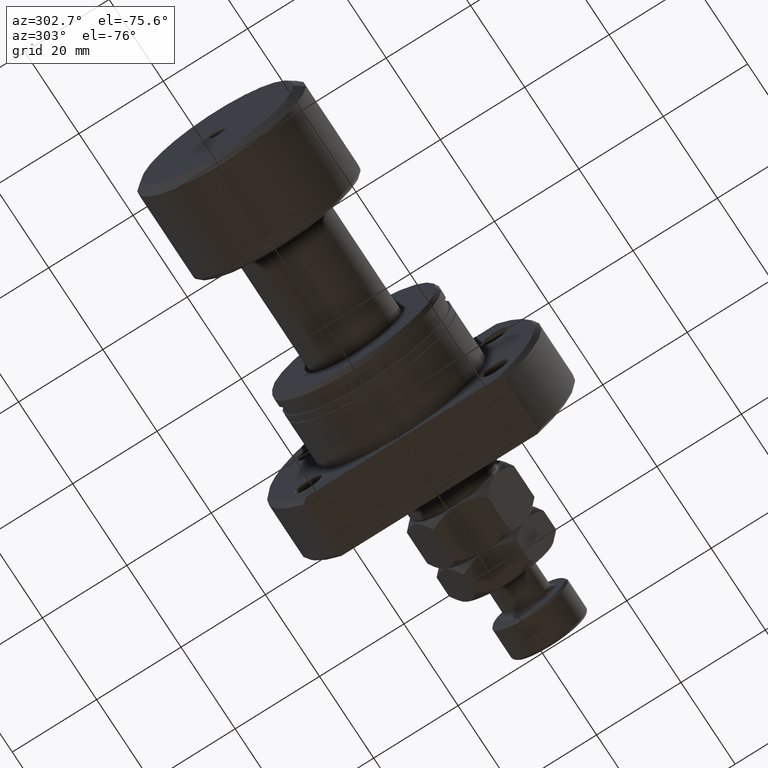
[diagram: clean part render]
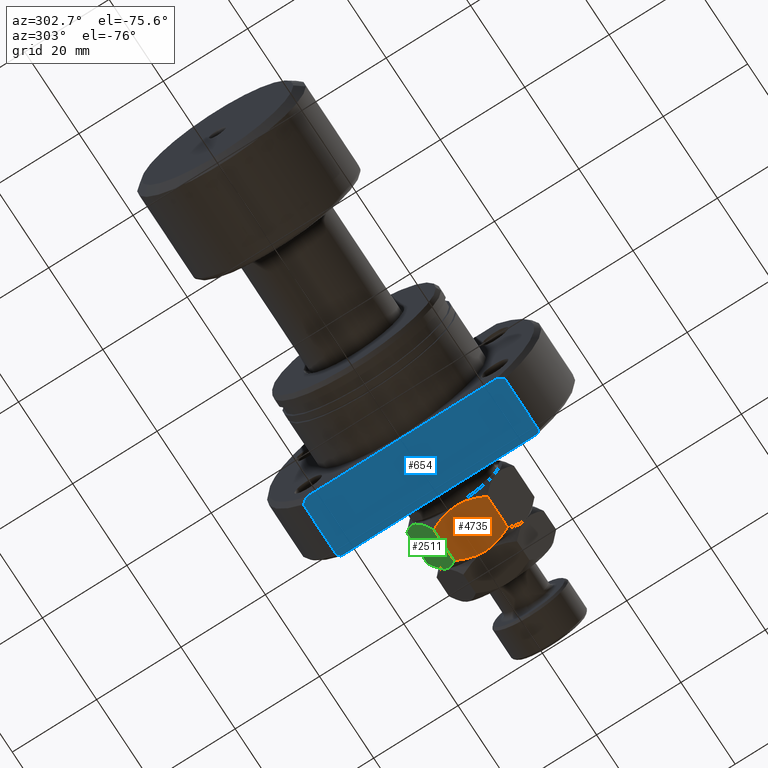
[diagram: same view with three faces highlighted in distinct colors, each labeled with its STEP entity id]
A machine part, auxiliary view with three faces highlighted in distinct colors.
Their STEP definitions:

[orange] entity #4735 — the highlighted planar face has unit normal (-0, 0, 1).
#149 = VERTEX_POINT ( 'NONE', #4440 ) ;
#182 = CARTESIAN_POINT ( 'NONE',  ( 10.99999999999999822, 4.323029509133802684, 0.8096537352537666044 ) ) ;
#334 = DIRECTION ( 'NONE',  ( -0.000000000000000000, -0.000000000000000000, -1.000000000000000000 ) ) ;
#400 = CARTESIAN_POINT ( 'NONE',  ( 11.00000000000000000, -0.2746235576716405391, 11.00000000000000355 ) ) ;
#446 = CARTESIAN_POINT ( 'NONE',  ( 11.00000000000000000, 6.350852961085883486, 9.298294077828240134 ) ) ;
#531 = CARTESIAN_POINT ( 'NONE',  ( 11.00000000000000000, 6.350852961085883486, 1.701705922171761198 ) ) ;
#560 = FACE_OUTER_BOUND ( 'NONE', #1838, .T. ) ;
#619 = CARTESIAN_POINT ( 'NONE',  ( 10.99999999999999645, -2.189438957741031366, 0.2028253662507153998 ) ) ;
#650 = B_SPLINE_CURVE_WITH_KNOTS ( 'NONE', 3,
 ( #4370, #2499, #1351, #619, #4350, #1725, #2036, #2896 ),
 .UNSPECIFIED., .F., .F.,
 ( 4, 2, 2, 4 ),
 ( 0.02548310755563731184, 0.02714502201312677179, 0.02880693647061623175, 0.03213076538559515166 ),
 .UNSPECIFIED. ) ;
#738 = CARTESIAN_POINT ( 'NONE',  ( 11.00000000000000000, -6.350852961085885262, 1.701705922171761864 ) ) ;
#773 = CARTESIAN_POINT ( 'NONE',  ( 10.99999999999999822, -2.205563362884370271, 10.79423439979603039 ) ) ;
#803 = EDGE_CURVE ( 'NONE', #2195, #149, #3767, .T. ) ;
#973 = CARTESIAN_POINT ( 'NONE',  ( 11.00000000000000000, 1.102880524211967916, 0.05171427369706949051 ) ) ;
#1019 = CARTESIAN_POINT ( 'NONE',  ( 11.00000000000000000, 2.731989201781026555, 10.67753305448841772 ) ) ;
#1140 = CARTESIAN_POINT ( 'NONE',  ( 11.00000000000000000, 6.350852961085883486, 11.00000000000000000 ) ) ;
#1160 = CARTESIAN_POINT ( 'NONE',  ( 11.00000000000000000, 6.350852961085883486, 9.298294077828240134 ) ) ;
#1243 = CARTESIAN_POINT ( 'NONE',  ( 11.00000000000000000, -6.350852961085885262, 9.298294077828238358 ) ) ;
#1351 = CARTESIAN_POINT ( 'NONE',  ( 11.00000000000000178, -1.099784029505286975, 0.04170177774201815762 ) ) ;
#1391 = CARTESIAN_POINT ( 'NONE',  ( 11.00000000000000178, 1.099784029505284533, 10.95829822225798189 ) ) ;
#1547 = CARTESIAN_POINT ( 'NONE',  ( 11.00000000000000178, -1.381217716854154398, 10.91695300848610017 ) ) ;
#1553 = EDGE_CURVE ( 'NONE', #2372, #4659, #2761, .T. ) ;
#1602 = CARTESIAN_POINT ( 'NONE',  ( 10.99999999999999822, -5.856287164594791150, 9.545576976073807174 ) ) ;
#1725 = CARTESIAN_POINT ( 'NONE',  ( 11.00000000000000178, -4.344649988696088094, 0.7819333922108973045 ) ) ;
#1766 = CARTESIAN_POINT ( 'NONE',  ( 11.00000000000000178, 0.5516605423237666006, 11.00000000000000355 ) ) ;
#1838 = EDGE_LOOP ( 'NONE', ( #3672, #2817, #2929, #3140, #3814, #4605 ) ) ;
#1964 = VERTEX_POINT ( 'NONE', #738 ) ;
#2012 = CARTESIAN_POINT ( 'NONE',  ( 11.00000000000000178, 1.381217716854154398, 0.08304699151390024237 ) ) ;
#2036 = CARTESIAN_POINT ( 'NONE',  ( 11.00000000000000000, -5.363576505757326807, 1.208067694507484413 ) ) ;
#2127 = CARTESIAN_POINT ( 'NONE',  ( 11.00000000000000000, -6.350852961085885262, 11.00000000000000000 ) ) ;
#2195 = VERTEX_POINT ( 'NONE', #531 ) ;
#2331 = CARTESIAN_POINT ( 'NONE',  ( 11.00000000000000178, -5.349315167928747172, 9.777295308501312121 ) ) ;
#2372 = VERTEX_POINT ( 'NONE', #2552 ) ;
#2497 = CARTESIAN_POINT ( 'NONE',  ( 10.99999999999999467, 0.000000000000000000, 11.00000000000000000 ) ) ;
#2499 = CARTESIAN_POINT ( 'NONE',  ( 10.99999999999999822, -0.5516605423237674888, 3.811648262644349985E-18 ) ) ;
#2552 = CARTESIAN_POINT ( 'NONE',  ( 10.99999999999999467, 0.000000000000000000, 11.00000000000000000 ) ) ;
#2669 = CARTESIAN_POINT ( 'NONE',  ( 10.99999999999999822, 5.363576505757325918, 9.791932305492514033 ) ) ;
#2726 = CARTESIAN_POINT ( 'NONE',  ( 10.99999999999999467, 0.000000000000000000, 11.00000000000000000 ) ) ;
#2761 = B_SPLINE_CURVE_WITH_KNOTS ( 'NONE', 3,
 ( #2497, #1766, #1391, #2894, #1019, #3796, #2669, #1160 ),
 .UNSPECIFIED., .F., .F.,
 ( 4, 2, 2, 4 ),
 ( 0.02548310755563731531, 0.02714502201312677526, 0.02880693647061623522, 0.03213076538559515860 ),
 .UNSPECIFIED. ) ;
#2763 = EDGE_CURVE ( 'NONE', #4659, #2195, #4515, .T. ) ;
#2779 = CARTESIAN_POINT ( 'NONE',  ( 11.00000000000000000, 5.349315167928744508, 1.222704691498689877 ) ) ;
#2817 = ORIENTED_EDGE ( 'NONE', *, *, #2763, .F. ) ;
#2894 = CARTESIAN_POINT ( 'NONE',  ( 10.99999999999999822, 2.189438957741029590, 10.79717463374928421 ) ) ;
#2896 = CARTESIAN_POINT ( 'NONE',  ( 11.00000000000000000, -6.350852961085885262, 1.701705922171761864 ) ) ;
#2929 = ORIENTED_EDGE ( 'NONE', *, *, #1553, .F. ) ;
#3046 = CARTESIAN_POINT ( 'NONE',  ( 11.00000000000000178, -0.5501206218979368678, 10.98970138300551191 ) ) ;
#3087 = EDGE_CURVE ( 'NONE', #4201, #1964, #3715, .T. ) ;
#3113 = DIRECTION ( 'NONE',  ( -0.000000000000000000, -0.000000000000000000, -1.000000000000000000 ) ) ;
#3140 = ORIENTED_EDGE ( 'NONE', *, *, #3956, .F. ) ;
#3253 = CARTESIAN_POINT ( 'NONE',  ( 11.00000000000000000, -6.350852961085885262, 11.00000000000000000 ) ) ;
#3385 = AXIS2_PLACEMENT_3D ( 'NONE', #2127, #3574, #4420 ) ;
#3412 = CARTESIAN_POINT ( 'NONE',  ( 11.00000000000000355, -2.743986917173864892, 10.67427553246086447 ) ) ;
#3449 = VECTOR ( 'NONE', #334, 1000.000000000000000 ) ;
#3482 = CARTESIAN_POINT ( 'NONE',  ( 11.00000000000000000, -3.802713407336412832, 10.37230892346509847 ) ) ;
#3512 = CARTESIAN_POINT ( 'NONE',  ( 11.00000000000000000, 0.000000000000000000, 0.000000000000000000 ) ) ;
#3561 = CARTESIAN_POINT ( 'NONE',  ( 11.00000000000000178, 5.856287164594785821, 1.454423023926191938 ) ) ;
#3574 = DIRECTION ( 'NONE',  ( -1.000000000000000000, 0.000000000000000000, 0.000000000000000000 ) ) ;
#3672 = ORIENTED_EDGE ( 'NONE', *, *, #803, .F. ) ;
#3715 = LINE ( 'NONE', #3253, #3449 ) ;
#3732 = EDGE_CURVE ( 'NONE', #149, #1964, #650, .T. ) ;
#3767 = B_SPLINE_CURVE_WITH_KNOTS ( 'NONE', 3,
 ( #4701, #3561, #2779, #182, #3880, #4279, #4675, #2012, #973, #4629, #3954, #3512 ),
 .UNSPECIFIED., .F., .F.,
 ( 4, 2, 2, 2, 2, 4 ),
 ( 0.01886453216956117396, 0.02051917601608021016, 0.02217381986259924290, 0.02382846370911827910, 0.02465578563237779547, 0.02548310755563731184 ),
 .UNSPECIFIED. ) ;
#3796 = CARTESIAN_POINT ( 'NONE',  ( 11.00000000000000178, 4.344649988696087206, 10.21806660778910114 ) ) ;
#3814 = ORIENTED_EDGE ( 'NONE', *, *, #3087, .T. ) ;
#3880 = CARTESIAN_POINT ( 'NONE',  ( 11.00000000000000000, 3.802713407336413276, 0.6276910765349043020 ) ) ;
#3946 = PLANE ( 'NONE',  #3385 ) ;
#3954 = CARTESIAN_POINT ( 'NONE',  ( 10.99999999999999822, 0.2746235576716393179, 8.470329472542994146E-18 ) ) ;
#3956 = EDGE_CURVE ( 'NONE', #4201, #2372, #4662, .T. ) ;
#3988 = CARTESIAN_POINT ( 'NONE',  ( 11.00000000000000000, -6.350852961085885262, 9.298294077828238358 ) ) ;
#4150 = CARTESIAN_POINT ( 'NONE',  ( 10.99999999999999822, -4.323029509133800907, 10.19034626474623551 ) ) ;
#4201 = VERTEX_POINT ( 'NONE', #3988 ) ;
#4203 = CARTESIAN_POINT ( 'NONE',  ( 11.00000000000000000, -1.102880524211969027, 10.94828572630293273 ) ) ;
#4279 = CARTESIAN_POINT ( 'NONE',  ( 11.00000000000000000, 2.743986917173864448, 0.3257244675391384736 ) ) ;
#4350 = CARTESIAN_POINT ( 'NONE',  ( 11.00000000000000000, -2.731989201781026111, 0.3224669455115847794 ) ) ;
#4370 = CARTESIAN_POINT ( 'NONE',  ( 11.00000000000000000, 0.000000000000000000, 0.000000000000000000 ) ) ;
#4420 = DIRECTION ( 'NONE',  ( 0.000000000000000000, 0.000000000000000000, 1.000000000000000000 ) ) ;
#4440 = CARTESIAN_POINT ( 'NONE',  ( 11.00000000000000000, 0.000000000000000000, 0.000000000000000000 ) ) ;
#4515 = LINE ( 'NONE', #1140, #4707 ) ;
#4605 = ORIENTED_EDGE ( 'NONE', *, *, #3732, .F. ) ;
#4629 = CARTESIAN_POINT ( 'NONE',  ( 10.99999999999999822, 0.5501206218979356466, 0.01029861699449337656 ) ) ;
#4659 = VERTEX_POINT ( 'NONE', #446 ) ;
#4662 = B_SPLINE_CURVE_WITH_KNOTS ( 'NONE', 3,
 ( #1243, #1602, #2331, #4150, #3482, #3412, #773, #1547, #4203, #3046, #400, #2726 ),
 .UNSPECIFIED., .F., .F.,
 ( 4, 2, 2, 2, 2, 4 ),
 ( 0.01886453216956117396, 0.02051917601608021016, 0.02217381986259924637, 0.02382846370911827910, 0.02465578563237779547, 0.02548310755563731531 ),
 .UNSPECIFIED. ) ;
#4675 = CARTESIAN_POINT ( 'NONE',  ( 11.00000000000000000, 2.205563362884370715, 0.2057656002039678633 ) ) ;
#4701 = CARTESIAN_POINT ( 'NONE',  ( 11.00000000000000000, 6.350852961085883486, 1.701705922171761198 ) ) ;
#4707 = VECTOR ( 'NONE', #3113, 1000.000000000000000 ) ;
#4735 = ADVANCED_FACE ( 'NONE', ( #560 ), #3946, .F. ) ;

[blue] entity #654 — the highlighted planar face has unit normal (0, 0, 1).
#62 = LINE ( 'NONE', #3081, #1730 ) ;
#75 = EDGE_CURVE ( 'NONE', #391, #3721, #1014, .T. ) ;
#155 = DIRECTION ( 'NONE',  ( 1.000000000000000000, -2.886466111666351885E-14, -0.000000000000000000 ) ) ;
#213 = CARTESIAN_POINT ( 'NONE',  ( -2.498001805406602216E-13, 23.92174742781216423, -21.99999999999998934 ) ) ;
#391 = VERTEX_POINT ( 'NONE', #3033 ) ;
#396 = B_SPLINE_CURVE_WITH_KNOTS ( 'NONE', 3,
 ( #2010, #4552, #3466, #3418 ),
 .UNSPECIFIED., .F., .F.,
 ( 4, 4 ),
 ( 0.03779752499755586331, 0.03950166028446448763 ),
 .UNSPECIFIED. ) ;
#563 = CARTESIAN_POINT ( 'NONE',  ( -1.637578961322105897E-12, -23.92174742781036301, -22.00000000000000355 ) ) ;
#617 = CARTESIAN_POINT ( 'NONE',  ( 18.49999999999998934, -23.92174742781089947, -22.00000000000000355 ) ) ;
#654 = ADVANCED_FACE ( 'NONE', ( #1993 ), #4583, .F. ) ;
#688 = B_SPLINE_CURVE_WITH_KNOTS ( 'NONE', 3,
 ( #4333, #3934, #3636, #2532 ),
 .UNSPECIFIED., .F., .F.,
 ( 4, 4 ),
 ( 0.03779112510166918876, 0.03863931077161771033 ),
 .UNSPECIFIED. ) ;
#735 = CARTESIAN_POINT ( 'NONE',  ( 31.50000000000000000, -32.00000000000000000, -22.00000000000000355 ) ) ;
#886 = B_SPLINE_CURVE_WITH_KNOTS ( 'NONE', 3,
 ( #4511, #3379, #1516, #3244 ),
 .UNSPECIFIED., .F., .F.,
 ( 4, 4 ),
 ( 0.08934887722955515976, 0.09106053602301780736 ),
 .UNSPECIFIED. ) ;
#896 = B_SPLINE_CURVE_WITH_KNOTS ( 'NONE', 3,
 ( #4036, #4863, #3255, #4461 ),
 .UNSPECIFIED., .F., .F.,
 ( 4, 4 ),
 ( 0.09020251661949948985, 0.09105413011805403578 ),
 .UNSPECIFIED. ) ;
#903 = VERTEX_POINT ( 'NONE', #3127 ) ;
#908 = ORIENTED_EDGE ( 'NONE', *, *, #4311, .F. ) ;
#1004 = ORIENTED_EDGE ( 'NONE', *, *, #3594, .F. ) ;
#1014 = LINE ( 'NONE', #735, #2339 ) ;
#1174 = ORIENTED_EDGE ( 'NONE', *, *, #4419, .F. ) ;
#1265 = DIRECTION ( 'NONE',  ( 1.000000000000000000, -2.886466111666351885E-14, -0.000000000000000000 ) ) ;
#1440 = VERTEX_POINT ( 'NONE', #617 ) ;
#1451 = EDGE_LOOP ( 'NONE', ( #2200, #908, #4053, #2044, #4523, #1174, #2704, #1004 ) ) ;
#1497 = VERTEX_POINT ( 'NONE', #1877 ) ;
#1516 = CARTESIAN_POINT ( 'NONE',  ( 18.16344437228347886, -23.46450416271138906, -22.00000000000000355 ) ) ;
#1557 = DIRECTION ( 'NONE',  ( 1.000000000000000000, 0.000000000000000000, -0.000000000000000000 ) ) ;
#1585 = CARTESIAN_POINT ( 'NONE',  ( -2.498001805406602216E-13, 23.92174742781217489, -22.00000000000000355 ) ) ;
#1730 = VECTOR ( 'NONE', #4231, 1000.000000000000000 ) ;
#1786 = EDGE_CURVE ( 'NONE', #1440, #3206, #3949, .T. ) ;
#1877 = CARTESIAN_POINT ( 'NONE',  ( 17.50000000000000355, 22.54440063519089676, -22.00000000000000355 ) ) ;
#1993 = FACE_OUTER_BOUND ( 'NONE', #1451, .T. ) ;
#2010 = CARTESIAN_POINT ( 'NONE',  ( 18.49999999999998934, 23.92174742781163133, -21.99999999999998934 ) ) ;
#2022 = LINE ( 'NONE', #213, #4542 ) ;
#2044 = ORIENTED_EDGE ( 'NONE', *, *, #3265, .F. ) ;
#2063 = CARTESIAN_POINT ( 'NONE',  ( 31.50000000000000000, 23.23790007724450035, -22.00000000000000355 ) ) ;
#2150 = EDGE_CURVE ( 'NONE', #4591, #903, #2022, .T. ) ;
#2200 = ORIENTED_EDGE ( 'NONE', *, *, #2150, .T. ) ;
#2339 = VECTOR ( 'NONE', #4463, 1000.000000000000000 ) ;
#2343 = VECTOR ( 'NONE', #155, 1000.000000000000000 ) ;
#2532 = CARTESIAN_POINT ( 'NONE',  ( 31.50000000000000000, -23.23790007724450035, -22.00000000000000355 ) ) ;
#2704 = ORIENTED_EDGE ( 'NONE', *, *, #3560, .F. ) ;
#3033 = CARTESIAN_POINT ( 'NONE',  ( 31.50000000000000000, -23.23790007724450035, -22.00000000000000355 ) ) ;
#3081 = CARTESIAN_POINT ( 'NONE',  ( 17.50000000000000000, -19.99999999999999645, -22.00000000000000355 ) ) ;
#3127 = CARTESIAN_POINT ( 'NONE',  ( 31.00000000000007461, 23.92174742781126895, -21.99999999999998934 ) ) ;
#3206 = VERTEX_POINT ( 'NONE', #4887 ) ;
#3244 = CARTESIAN_POINT ( 'NONE',  ( 18.49999999999998934, -23.92174742781089947, -22.00000000000000355 ) ) ;
#3255 = CARTESIAN_POINT ( 'NONE',  ( 31.16744843440999091, 23.69425258719626370, -22.00000000000000355 ) ) ;
#3265 = EDGE_CURVE ( 'NONE', #3206, #391, #688, .T. ) ;
#3379 = CARTESIAN_POINT ( 'NONE',  ( 17.82998096711740033, -23.00546414414808183, -22.00000000000000355 ) ) ;
#3418 = CARTESIAN_POINT ( 'NONE',  ( 17.50000000000000355, 22.54440063519089676, -22.00000000000000355 ) ) ;
#3466 = CARTESIAN_POINT ( 'NONE',  ( 17.83023180395318263, 23.00581462409452982, -22.00000000000000355 ) ) ;
#3560 = EDGE_CURVE ( 'NONE', #1497, #4783, #62, .T. ) ;
#3594 = EDGE_CURVE ( 'NONE', #4591, #1497, #396, .T. ) ;
#3636 = CARTESIAN_POINT ( 'NONE',  ( 31.33407032320117125, -23.46639532164749298, -22.00000000000000355 ) ) ;
#3721 = VERTEX_POINT ( 'NONE', #2063 ) ;
#3934 = CARTESIAN_POINT ( 'NONE',  ( 31.16738888422669262, -23.69433349186106597, -22.00000000000000355 ) ) ;
#3949 = LINE ( 'NONE', #563, #2343 ) ;
#4036 = CARTESIAN_POINT ( 'NONE',  ( 31.50000000000000000, 23.23790007724450035, -22.00000000000000355 ) ) ;
#4053 = ORIENTED_EDGE ( 'NONE', *, *, #75, .F. ) ;
#4231 = DIRECTION ( 'NONE',  ( 2.721437331438560389E-17, -1.000000000000000000, 0.000000000000000000 ) ) ;
#4311 = EDGE_CURVE ( 'NONE', #3721, #903, #896, .T. ) ;
#4333 = CARTESIAN_POINT ( 'NONE',  ( 31.00000000000007461, -23.92174742781125829, -22.00000000000000355 ) ) ;
#4364 = CARTESIAN_POINT ( 'NONE',  ( 17.50000000000001776, -22.54440063519093940, -22.00000000000000355 ) ) ;
#4419 = EDGE_CURVE ( 'NONE', #4783, #1440, #886, .T. ) ;
#4461 = CARTESIAN_POINT ( 'NONE',  ( 31.00000000000007461, 23.92174742781126895, -21.99999999999998934 ) ) ;
#4463 = DIRECTION ( 'NONE',  ( -2.721437331438560389E-17, 1.000000000000000000, -0.000000000000000000 ) ) ;
#4511 = CARTESIAN_POINT ( 'NONE',  ( 17.50000000000001776, -22.54440063519093940, -22.00000000000000355 ) ) ;
#4523 = ORIENTED_EDGE ( 'NONE', *, *, #1786, .F. ) ;
#4542 = VECTOR ( 'NONE', #1265, 1000.000000000000000 ) ;
#4552 = CARTESIAN_POINT ( 'NONE',  ( 18.16368991444090497, 23.46483775540317041, -22.00000000000000355 ) ) ;
#4576 = CARTESIAN_POINT ( 'NONE',  ( 18.49999999999998934, 23.92174742781163133, -21.99999999999998934 ) ) ;
#4583 = PLANE ( 'NONE',  #4622 ) ;
#4591 = VERTEX_POINT ( 'NONE', #4576 ) ;
#4604 = DIRECTION ( 'NONE',  ( 0.000000000000000000, 0.000000000000000000, 1.000000000000000000 ) ) ;
#4622 = AXIS2_PLACEMENT_3D ( 'NONE', #1585, #4604, #1557 ) ;
#4783 = VERTEX_POINT ( 'NONE', #4364 ) ;
#4863 = CARTESIAN_POINT ( 'NONE',  ( 31.33413051841647246, 23.46631242917946381, -22.00000000000000355 ) ) ;
#4887 = CARTESIAN_POINT ( 'NONE',  ( 31.00000000000007461, -23.92174742781125829, -22.00000000000000355 ) ) ;

[green] entity #2511 — the highlighted planar face has unit normal (0, -0.866, 0.5).
#58 = AXIS2_PLACEMENT_3D ( 'NONE', #4099, #715, #1791 ) ;
#245 = ORIENTED_EDGE ( 'NONE', *, *, #1433, .F. ) ;
#282 = CARTESIAN_POINT ( 'NONE',  ( 3.602926119288152318, 10.62155555733041901, 10.83109139163524581 ) ) ;
#363 = ORIENTED_EDGE ( 'NONE', *, *, #500, .F. ) ;
#446 = CARTESIAN_POINT ( 'NONE',  ( 11.00000000000000000, 6.350852961085883486, 9.298294077828240134 ) ) ;
#465 = EDGE_LOOP ( 'NONE', ( #1477, #245, #363, #553, #3881, #3254 ) ) ;
#500 = EDGE_CURVE ( 'NONE', #2795, #4145, #4655, .T. ) ;
#531 = CARTESIAN_POINT ( 'NONE',  ( 11.00000000000000000, 6.350852961085883486, 1.701705922171761198 ) ) ;
#541 = CARTESIAN_POINT ( 'NONE',  ( 11.00000000000000000, 6.350852961085883486, 9.298294077828240134 ) ) ;
#553 = ORIENTED_EDGE ( 'NONE', *, *, #1770, .F. ) ;
#715 = DIRECTION ( 'NONE',  ( -0.4999999999999998890, -0.8660254037844387076, 0.000000000000000000 ) ) ;
#825 = CARTESIAN_POINT ( 'NONE',  ( 9.006588997586899406E-16, 12.70170592217176342, 1.701705922171758312 ) ) ;
#850 = CARTESIAN_POINT ( 'NONE',  ( 0.8624791307172143817, 12.20375336388174503, 1.203753363881742811 ) ) ;
#866 = VERTEX_POINT ( 'NONE', #3538 ) ;
#895 = CARTESIAN_POINT ( 'NONE',  ( 5.018290712253357100, 9.804394428580492260, -1.345088320239828938E-15 ) ) ;
#916 = CARTESIAN_POINT ( 'NONE',  ( 11.00000000000000000, 6.350852961085883486, 1.701705922171761198 ) ) ;
#968 = CARTESIAN_POINT ( 'NONE',  ( 9.255521992360790762, 7.358027808391762292, 10.21937661245322460 ) ) ;
#1140 = CARTESIAN_POINT ( 'NONE',  ( 11.00000000000000000, 6.350852961085883486, 11.00000000000000000 ) ) ;
#1294 = CARTESIAN_POINT ( 'NONE',  ( 4.529374112020105869, 10.08667055933643830, 0.04365929743512447087 ) ) ;
#1321 = CARTESIAN_POINT ( 'NONE',  ( 10.13752086928278295, 6.848805519375901874, 9.796246636118256745 ) ) ;
#1361 = CARTESIAN_POINT ( 'NONE',  ( 5.499999999999999112, 9.526279441628826561, 0.000000000000000000 ) ) ;
#1405 = CARTESIAN_POINT ( 'NONE',  ( 1.748214531935807559, 11.69237379155741152, 10.22231519547797518 ) ) ;
#1433 = EDGE_CURVE ( 'NONE', #4145, #866, #2526, .T. ) ;
#1477 = ORIENTED_EDGE ( 'NONE', *, *, #1707, .F. ) ;
#1699 = CARTESIAN_POINT ( 'NONE',  ( 7.420105971005182433, 8.417705742396377033, 10.79187792513293154 ) ) ;
#1707 = EDGE_CURVE ( 'NONE', #866, #4158, #2353, .T. ) ;
#1722 = CARTESIAN_POINT ( 'NONE',  ( 5.499999999999998224, 9.526279441628819455, 11.00000000000000000 ) ) ;
#1740 = CARTESIAN_POINT ( 'NONE',  ( 5.499999999999999112, 9.526279441628826561, 0.000000000000000000 ) ) ;
#1746 = CARTESIAN_POINT ( 'NONE',  ( 1.744478007639208350, 11.69453107486588195, 0.7806233875467714078 ) ) ;
#1770 = EDGE_CURVE ( 'NONE', #4659, #2795, #2523, .T. ) ;
#1791 = DIRECTION ( 'NONE',  ( 0.8660254037844387076, -0.4999999999999998890, 0.000000000000000000 ) ) ;
#2100 = CARTESIAN_POINT ( 'NONE',  ( 9.251785468064189999, 7.360185091700237159, 0.7776848045220270400 ) ) ;
#2195 = VERTEX_POINT ( 'NONE', #531 ) ;
#2353 = B_SPLINE_CURVE_WITH_KNOTS ( 'NONE', 3,
 ( #825, #850, #1746, #2430, #3170, #1294, #895, #4721 ),
 .UNSPECIFIED., .F., .F.,
 ( 4, 2, 2, 4 ),
 ( 2.544311317623912303E-07, 0.003291871675740029504, 0.004937680298044162114, 0.006583488920348296025 ),
 .UNSPECIFIED. ) ;
#2430 = CARTESIAN_POINT ( 'NONE',  ( 3.115032419653387397, 10.90324111615047364, 0.3282192120904029453 ) ) ;
#2491 = CARTESIAN_POINT ( 'NONE',  ( 10.13851939750335696, 6.848229018838962290, 1.204329864418605567 ) ) ;
#2511 = ADVANCED_FACE ( 'NONE', ( #4764 ), #3723, .F. ) ;
#2523 = B_SPLINE_CURVE_WITH_KNOTS ( 'NONE', 3,
 ( #541, #1321, #968, #3896, #1699, #3146, #2824, #1722 ),
 .UNSPECIFIED., .F., .F.,
 ( 4, 2, 2, 4 ),
 ( 2.544311317614349830E-07, 0.003291871675740032106, 0.004937680298044164716, 0.006583488920348298627 ),
 .UNSPECIFIED. ) ;
#2526 = LINE ( 'NONE', #3011, #4767 ) ;
#2586 = CARTESIAN_POINT ( 'NONE',  ( 0.8614806024966432663, 12.20432986441868728, 9.795670135581396210 ) ) ;
#2763 = EDGE_CURVE ( 'NONE', #4659, #2195, #4515, .T. ) ;
#2772 = CARTESIAN_POINT ( 'NONE',  ( -4.327962126576701651E-16, 12.70170592217176342, 9.298294077828241910 ) ) ;
#2795 = VERTEX_POINT ( 'NONE', #3480 ) ;
#2824 = CARTESIAN_POINT ( 'NONE',  ( 5.981709287746640236, 9.248164454677155533, 11.00000000000000000 ) ) ;
#3011 = CARTESIAN_POINT ( 'NONE',  ( 0.000000000000000000, 12.70170592217176342, 11.00000000000000000 ) ) ;
#3113 = DIRECTION ( 'NONE',  ( -0.000000000000000000, -0.000000000000000000, -1.000000000000000000 ) ) ;
#3146 = CARTESIAN_POINT ( 'NONE',  ( 6.470625887979895019, 8.965888323921213043, 10.95634070256487824 ) ) ;
#3170 = CARTESIAN_POINT ( 'NONE',  ( 3.579894028994819788, 10.63485314086127431, 0.2081220748670722098 ) ) ;
#3254 = ORIENTED_EDGE ( 'NONE', *, *, #4134, .F. ) ;
#3273 = CARTESIAN_POINT ( 'NONE',  ( 5.499999999999998224, 9.526279441628819455, 11.00000000000000000 ) ) ;
#3480 = CARTESIAN_POINT ( 'NONE',  ( 5.499999999999998224, 9.526279441628819455, 11.00000000000000000 ) ) ;
#3538 = CARTESIAN_POINT ( 'NONE',  ( 9.006588997586899406E-16, 12.70170592217176342, 1.701705922171758312 ) ) ;
#3723 = PLANE ( 'NONE',  #58 ) ;
#3881 = ORIENTED_EDGE ( 'NONE', *, *, #2763, .T. ) ;
#3896 = CARTESIAN_POINT ( 'NONE',  ( 7.884967580346613936, 8.149317767107177701, 10.67178078790959717 ) ) ;
#4020 = DIRECTION ( 'NONE',  ( -0.000000000000000000, -0.000000000000000000, -1.000000000000000000 ) ) ;
#4099 = CARTESIAN_POINT ( 'NONE',  ( 11.00000000000000000, 6.350852961085883486, 11.00000000000000000 ) ) ;
#4134 = EDGE_CURVE ( 'NONE', #4158, #2195, #4727, .T. ) ;
#4145 = VERTEX_POINT ( 'NONE', #2772 ) ;
#4158 = VERTEX_POINT ( 'NONE', #1361 ) ;
#4341 = CARTESIAN_POINT ( 'NONE',  ( 6.456670474420574735, 8.973945485696338764, -1.192622389734053694E-15 ) ) ;
#4515 = LINE ( 'NONE', #1140, #4707 ) ;
#4642 = CARTESIAN_POINT ( 'NONE',  ( 7.397073880711847238, 8.431003325927232339, 0.1689086083647579339 ) ) ;
#4655 = B_SPLINE_CURVE_WITH_KNOTS ( 'NONE', 3,
 ( #3273, #4805, #282, #1405, #2586, #4776 ),
 .UNSPECIFIED., .F., .F.,
 ( 4, 2, 4 ),
 ( 0.006583488920348298627, 0.009852050593448711396, 0.01312061226654912156 ),
 .UNSPECIFIED. ) ;
#4659 = VERTEX_POINT ( 'NONE', #446 ) ;
#4707 = VECTOR ( 'NONE', #3113, 1000.000000000000000 ) ;
#4721 = CARTESIAN_POINT ( 'NONE',  ( 5.499999999999999112, 9.526279441628826561, 0.000000000000000000 ) ) ;
#4727 = B_SPLINE_CURVE_WITH_KNOTS ( 'NONE', 3,
 ( #1740, #4341, #4642, #2100, #2491, #916 ),
 .UNSPECIFIED., .F., .F.,
 ( 4, 2, 4 ),
 ( 0.006583488920348296025, 0.009852050593448707927, 0.01312061226654912330 ),
 .UNSPECIFIED. ) ;
#4764 = FACE_OUTER_BOUND ( 'NONE', #465, .T. ) ;
#4767 = VECTOR ( 'NONE', #4020, 1000.000000000000000 ) ;
#4776 = CARTESIAN_POINT ( 'NONE',  ( -4.327962126576701651E-16, 12.70170592217176342, 9.298294077828241910 ) ) ;
#4805 = CARTESIAN_POINT ( 'NONE',  ( 4.543329525579426154, 10.07861339756131080, 11.00000000000000000 ) ) ;